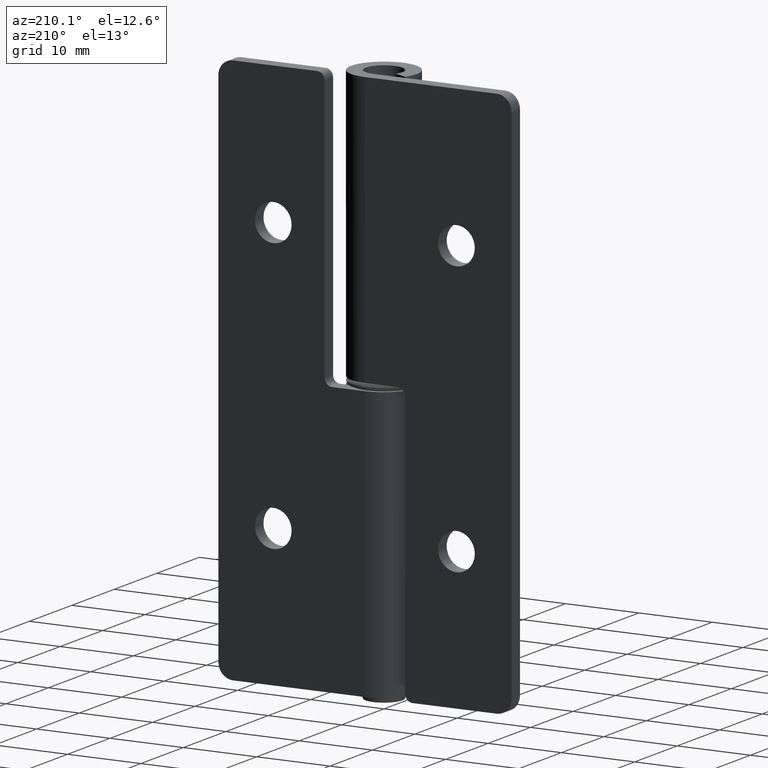
[diagram: clean part render]
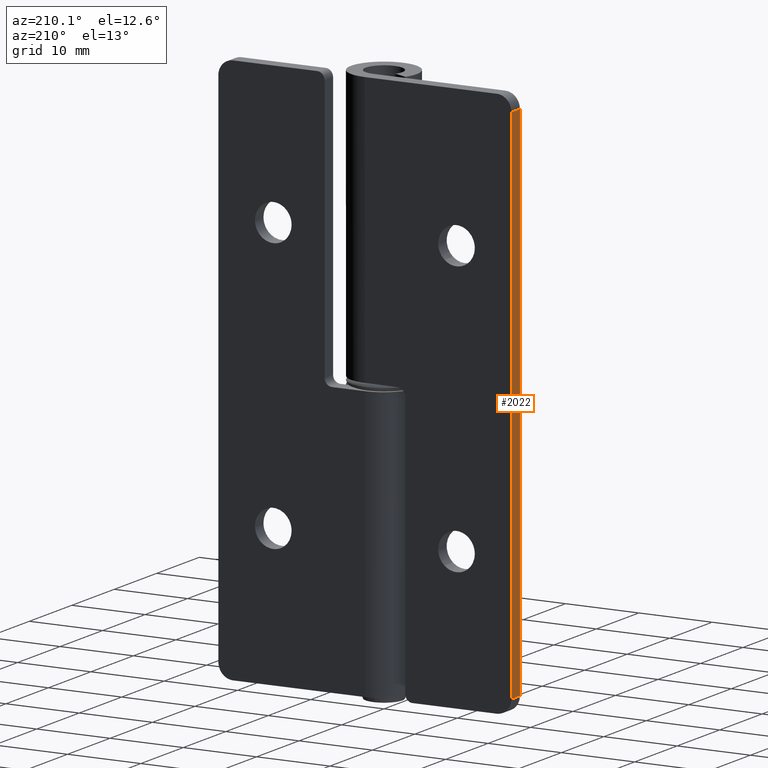
[diagram: same view with one face highlighted and labeled with its STEP entity id]
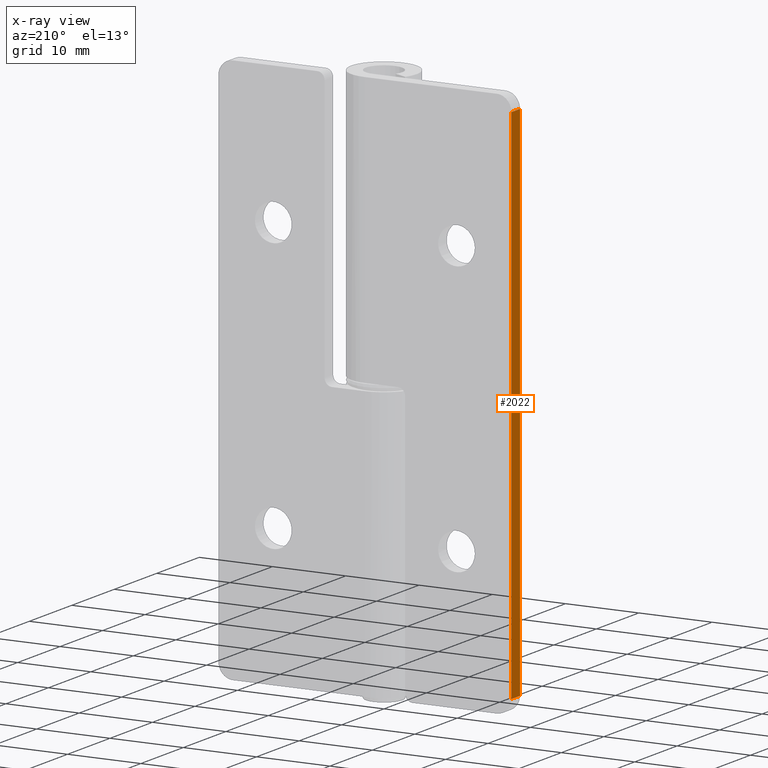
[diagram: x-ray of the same camera — body ghosted, the highlighted face saturated]
A machine part, auxiliary view. The second image highlights one B-rep face of the part: STEP entity #2022.
The next image is the same camera in x-ray: the body ghosted, the highlighted face saturated — about 0% of this face is hidden behind the body in this view.
In plain terms, the highlighted face is a freeform B-spline surface patch.
Its self-contained STEP definition (entity closure, byte-faithful):
#1517=CARTESIAN_POINT('',(-19.999999999983000,2.500000000000000,73.0));
#1518=VERTEX_POINT('',#1517);
#1519=CARTESIAN_POINT('',(-19.999999999983000,2.500000000000000,2.0));
#1520=VERTEX_POINT('',#1519);
#1521=CARTESIAN_POINT('',(-19.999999999983000,2.500000000000000,73.0));
#1522=CARTESIAN_POINT('',(-19.999999999983000,2.500000000000000,2.0));
#1523=QUASI_UNIFORM_CURVE('',1,(#1521,#1522),.UNSPECIFIED.,.F.,.U.);
#1524=EDGE_CURVE('',#1518,#1520,#1523,.T.);
#1656=CARTESIAN_POINT('',(-19.999999999983000,4.500000000000000,73.0));
#1657=VERTEX_POINT('',#1656);
#1671=CARTESIAN_POINT('',(-19.999999999983000,2.500000000000000,73.0));
#1672=CARTESIAN_POINT('',(-19.999999999983000,4.500000000000000,73.0));
#1673=QUASI_UNIFORM_CURVE('',1,(#1671,#1672),.UNSPECIFIED.,.F.,.U.);
#1674=EDGE_CURVE('',#1518,#1657,#1673,.T.);
#1694=CARTESIAN_POINT('',(-19.999999999983000,4.500000000000000,2.0));
#1695=VERTEX_POINT('',#1694);
#1696=CARTESIAN_POINT('',(-19.999999999983000,4.500000000000000,2.0));
#1697=CARTESIAN_POINT('',(-19.999999999983000,2.500000000000000,2.0));
#1698=QUASI_UNIFORM_CURVE('',1,(#1696,#1697),.UNSPECIFIED.,.F.,.U.);
#1699=EDGE_CURVE('',#1695,#1520,#1698,.T.);
#2007=CARTESIAN_POINT('',(-19.999999999983000,2.400100003876388,-1.546449862388226));
#2008=CARTESIAN_POINT('',(-19.999999999983000,2.400100003876388,76.546451766756618));
#2009=CARTESIAN_POINT('',(-19.999999999983000,4.599900049767792,-1.546449862388226));
#2010=CARTESIAN_POINT('',(-19.999999999983000,4.599900049767792,76.546451766756618));
#2011=B_SPLINE_SURFACE_WITH_KNOTS('',1,1,((#2007,#2009),(#2008,#2010)),.UNSPECIFIED.,.F.,.F.,.U.,(2,2),(2,2),(0.0,78.092901629144848),(0.0,2.199800045891405),.UNSPECIFIED.);
#2012=CARTESIAN_POINT('',(-19.999999999983000,4.500000000000000,73.0));
#2013=CARTESIAN_POINT('',(-19.999999999983000,4.500000000000000,2.0));
#2014=QUASI_UNIFORM_CURVE('',1,(#2012,#2013),.UNSPECIFIED.,.F.,.U.);
#2015=EDGE_CURVE('',#1657,#1695,#2014,.T.);
#2016=ORIENTED_EDGE('',*,*,#2015,.T.);
#2017=ORIENTED_EDGE('',*,*,#1699,.T.);
#2018=ORIENTED_EDGE('',*,*,#1524,.F.);
#2019=ORIENTED_EDGE('',*,*,#1674,.T.);
#2020=EDGE_LOOP('',(#2016,#2017,#2018,#2019));
#2021=FACE_OUTER_BOUND('',#2020,.T.);
#2022=ADVANCED_FACE('',(#2021),#2011,.T.);